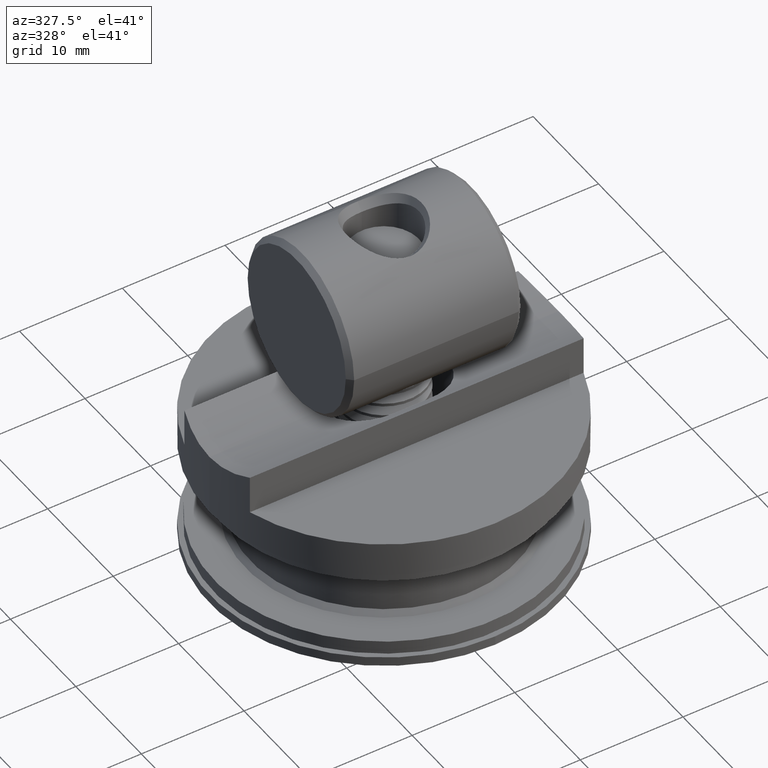
[diagram: clean part render]
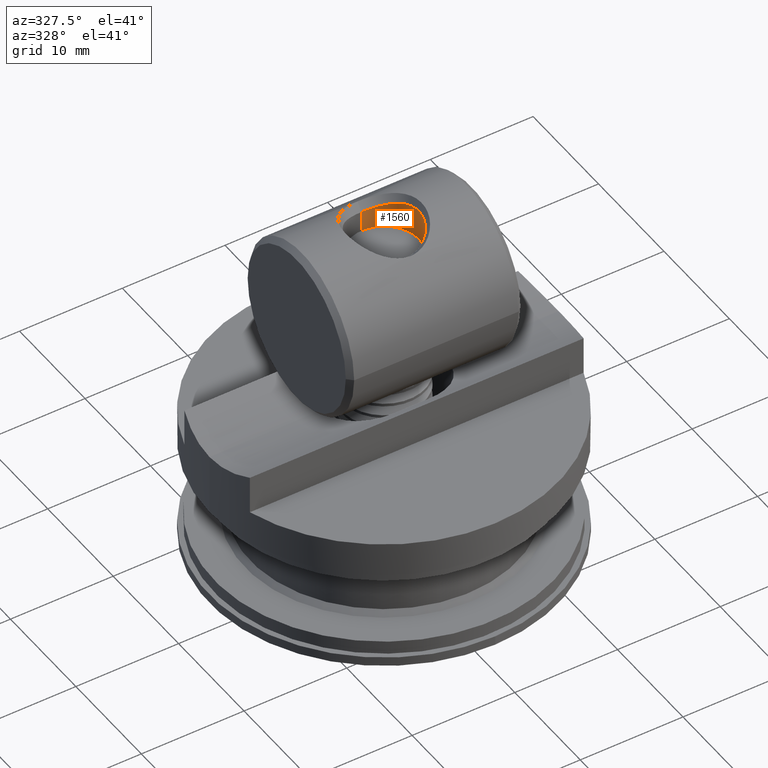
[diagram: same view with one face highlighted and labeled with its STEP entity id]
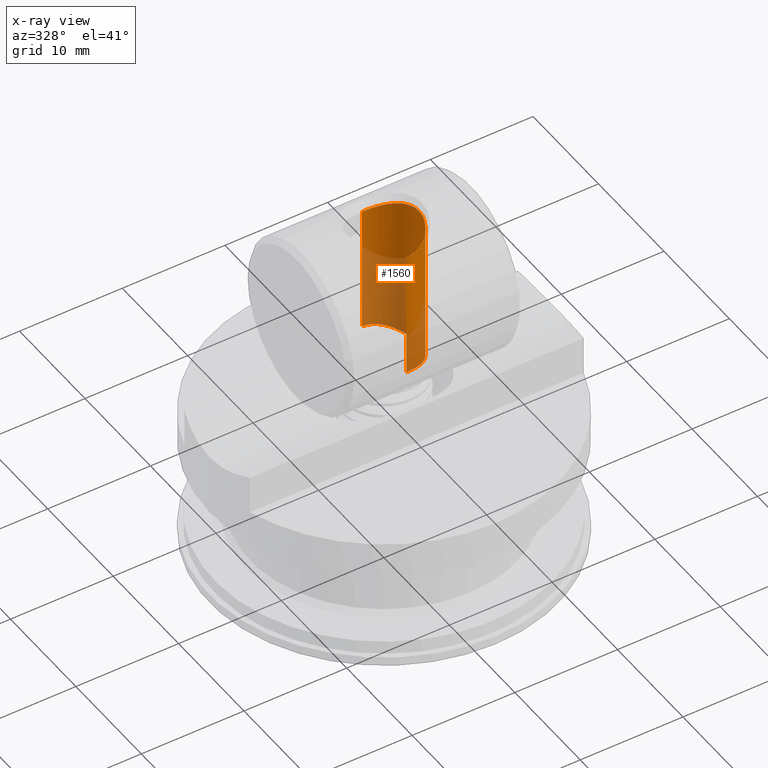
[diagram: x-ray of the same camera — body ghosted, the highlighted face saturated]
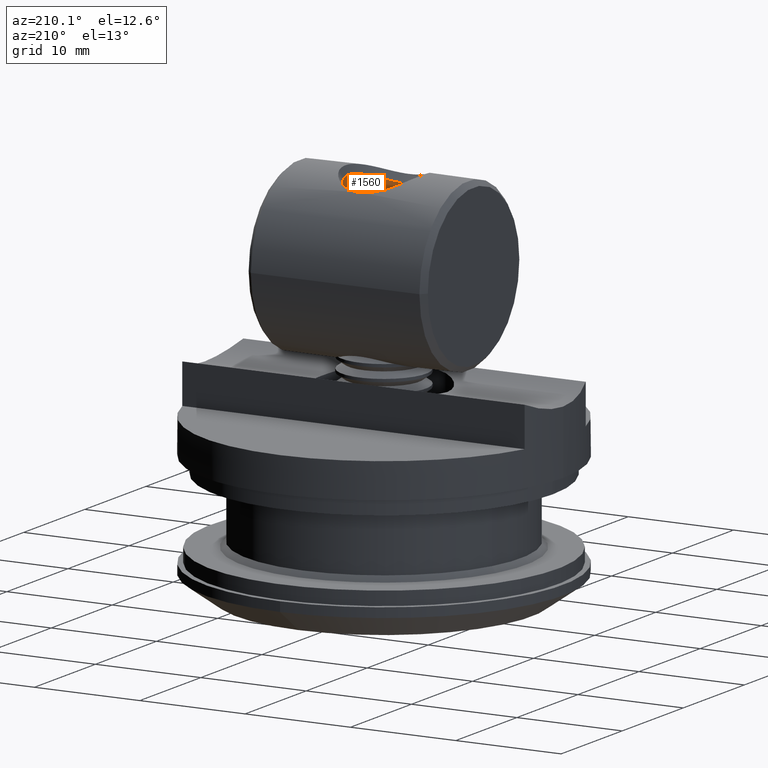
[diagram: same view with one face highlighted and labeled with its STEP entity id]
A machine part, auxiliary view. The second image highlights one B-rep face of the part: STEP entity #1560.
The next image is the same camera in x-ray: the body ghosted, the highlighted face saturated — about 48% of this face is hidden behind the body in this view.
A second angle (auxiliary view) of the same face is appended — the face is thin or edge-on in the first view.
In plain terms, the highlighted cylindrical surface (partial cylindrical patch) has radius 3.4 mm, axis along (-0, 0, 1).
Its self-contained STEP definition (entity closure, byte-faithful):
#1 = CARTESIAN_POINT ( 'NONE',  ( 2.612428075569995600, -6.848915378474107000, 2.176106729676543100 ) ) ;
#28 = CARTESIAN_POINT ( 'NONE',  ( 0.4533318368418963700, 6.260406910763247600, -3.370123141688745200 ) ) ;
#43 = CARTESIAN_POINT ( 'NONE',  ( 2.381895825218684600, 6.750253204565487900, 2.426385604337501600 ) ) ;
#77 = CARTESIAN_POINT ( 'NONE',  ( 0.4488852642628906000, -6.260041790339065500, 3.370705655158324100 ) ) ;
#127 = CARTESIAN_POINT ( 'NONE',  ( 2.402785588559569300, 6.758909017893788700, 2.405540033752748400 ) ) ;
#156 = CARTESIAN_POINT ( 'NONE',  ( 1.361148548862095100, -6.411920466086115800, 3.116092965366067600 ) ) ;
#200 = CARTESIAN_POINT ( 'NONE',  ( 2.875654679088548400, -6.970671484061420600, -1.814390951893337700 ) ) ;
#201 = CARTESIAN_POINT ( 'NONE',  ( 2.616495615567082700, 6.850724234460167300, -2.171213532455733100 ) ) ;
#229 = CARTESIAN_POINT ( 'NONE',  ( 1.870711839673838700, -6.560009036192749200, 2.839128554790818700 ) ) ;
#259 = CARTESIAN_POINT ( 'NONE',  ( 1.729998912695919900, 6.514564708654891200, -2.927882516994175800 ) ) ;
#276 = CARTESIAN_POINT ( 'NONE',  ( 2.375938906981807100, 6.747830242049051500, -2.432094576783791600 ) ) ;
#332 = CARTESIAN_POINT ( 'NONE',  ( 2.052001435885508300, 6.622834584557239200, -2.711071205793310400 ) ) ;
#354 = CARTESIAN_POINT ( 'NONE',  ( 3.309206581491113600, 7.191270957303568200, -0.7824726354752034000 ) ) ;
#738 = CARTESIAN_POINT ( 'NONE',  ( 3.018877296389804100, -7.040891763691302400, -1.564156321701261100 ) ) ;
#1129 = CARTESIAN_POINT ( 'NONE',  ( 3.036270092866329200E-013, -6.241546821160469900, -3.400000007214849100 ) ) ;
#1150 = CARTESIAN_POINT ( 'NONE',  ( 0.2262291580545270400, -6.245129562172384600, -3.394378279765619200 ) ) ;
#1276 = CARTESIAN_POINT ( 'NONE',  ( 1.024650830817564600, 6.338706542991340100, 3.242052285615730800 ) ) ;
#1348 = CARTESIAN_POINT ( 'NONE',  ( 1.774631075636051700, -6.528542459282839200, -2.901018633850528200 ) ) ;
#1428 = CARTESIAN_POINT ( 'NONE',  ( 1.339206256381618500, -6.406677303506490300, -3.125275447621457500 ) ) ;
#1429 = CARTESIAN_POINT ( 'NONE',  ( 1.361728651312928300, 6.412255139104798800, 3.115424866097950700 ) ) ;
#1457 = CARTESIAN_POINT ( 'NONE',  ( 2.804734972222282100, -6.936952621867036800, 1.921881169732873500 ) ) ;
#1502 = CARTESIAN_POINT ( 'NONE',  ( 2.047350289150647700, 6.621180697251120700, 2.714502903506705000 ) ) ;
#1530 = CARTESIAN_POINT ( 'NONE',  ( 2.345228009986186200, -6.735278852776478000, 2.461830095026840600 ) ) ;
#1560 = ADVANCED_FACE ( 'NONE', ( #17622 ), #10074, .F. ) ;
#1573 = CARTESIAN_POINT ( 'NONE',  ( 2.850464711578204900, 6.958632935363936200, 1.853391074951411300 ) ) ;
#1602 = CARTESIAN_POINT ( 'NONE',  ( 3.307940138610897300, -7.190591739028892700, 0.7878262026015286900 ) ) ;
#1626 = DIRECTION ( 'NONE',  ( 0.0000000000000000000, 0.0000000000000000000, 1.000000000000000000 ) ) ;
#1651 = CARTESIAN_POINT ( 'NONE',  ( 2.174089119738936900, 6.668090025720959900, 2.614071328303984000 ) ) ;
#1678 = CARTESIAN_POINT ( 'NONE',  ( 2.480037067771482500, -6.791333012460805600, 2.325849673836914500 ) ) ;
#1729 = CARTESIAN_POINT ( 'NONE',  ( 2.873804864583700400, 6.969782424283082800, 1.817324543989212300 ) ) ;
#1754 = CARTESIAN_POINT ( 'NONE',  ( 3.175811448002231700, -7.120842532192585700, 1.215470870833951900 ) ) ;
#1801 = CARTESIAN_POINT ( 'NONE',  ( 2.632463665908881800, -6.857848539207226100, -2.151812877940245000 ) ) ;
#1804 = CARTESIAN_POINT ( 'NONE',  ( 2.533717971523472600, 6.814378435337925300, 2.267261275747619400 ) ) ;
#1831 = CARTESIAN_POINT ( 'NONE',  ( 0.5599736595407358600, -6.270460824765400800, 3.354039966191404400 ) ) ;
#1864 = CARTESIAN_POINT ( 'NONE',  ( 0.8131754988109355400, 6.302496028894595700, -3.302159315326024000 ) ) ;
#1881 = CARTESIAN_POINT ( 'NONE',  ( 2.685442573818770800, 6.881698265834755200, 2.085625635292636600 ) ) ;
#1909 = CARTESIAN_POINT ( 'NONE',  ( 0.9438328521821152100, -6.324069430654318100, 3.266495177468463400 ) ) ;
#1952 = CARTESIAN_POINT ( 'NONE',  ( 3.092383459095611600, 7.077951716416139400, -1.413476007264408800 ) ) ;
#1978 = CARTESIAN_POINT ( 'NONE',  ( 1.435023501541832000, -6.430496035282824400, 3.083194182261868000 ) ) ;
#1986 = EDGE_LOOP ( 'NONE', ( #21710, #12031, #18794, #9803, #22279 ) ) ;
#1988 = VECTOR ( 'NONE', #9296, 1000.000000000000000 ) ;
#2013 = CARTESIAN_POINT ( 'NONE',  ( 0.7321038097214068700, 6.291107211093018000, -3.320697228786394700 ) ) ;
#2037 = CARTESIAN_POINT ( 'NONE',  ( 2.813472551887919800, 6.941073215708257700, -1.909078157442633400 ) ) ;
#2109 = CARTESIAN_POINT ( 'NONE',  ( 2.399331073331798500, 6.757477062051354900, -2.408997771656112200 ) ) ;
#2378 = EDGE_CURVE ( 'NONE', #2845, #7215, #16515, .T. ) ;
#2841 = CARTESIAN_POINT ( 'NONE',  ( 3.394606040272734900, -7.237500468526631500, -0.2221910888064349000 ) ) ;
#2845 = VERTEX_POINT ( 'NONE', #21619 ) ;
#2913 = CARTESIAN_POINT ( 'NONE',  ( 3.115652293729327400, -7.089811839120074800, -1.362217306023162600 ) ) ;
#2923 = AXIS2_PLACEMENT_3D ( 'NONE', #9730, #15172, #1626 ) ;
#3006 = CARTESIAN_POINT ( 'NONE',  ( 0.9457669082009810800, -6.324208351551467500, -3.266309337115174100 ) ) ;
#3008 = CARTESIAN_POINT ( 'NONE',  ( 1.905465129299188400, 6.571651314193410100, 2.815922485395566400 ) ) ;
#3080 = CARTESIAN_POINT ( 'NONE',  ( 1.027517437221762600, -6.339247077588704600, -3.241144990400579600 ) ) ;
#3082 = CARTESIAN_POINT ( 'NONE',  ( 1.634722860812145100, 6.486139660215168400, 2.981249205231021100 ) ) ;
#3165 = CARTESIAN_POINT ( 'NONE',  ( 0.7011318733424830600, 6.287185895024712100, 3.327043874209834100 ) ) ;
#3185 = CARTESIAN_POINT ( 'NONE',  ( 2.976828885527332600, -7.020004441330256000, 1.642760908705533500 ) ) ;
#3220 = CARTESIAN_POINT ( 'NONE',  ( 2.500361491344629700, -6.799997050897571800, -2.304077374574616100 ) ) ;
#3222 = CARTESIAN_POINT ( 'NONE',  ( 0.7805686463206001900, 6.298089066870366200, 3.309300871404968500 ) ) ;
#3249 = CARTESIAN_POINT ( 'NONE',  ( 2.944448410435929200, -7.004056807529422300, 1.700431122694670000 ) ) ;
#3298 = CARTESIAN_POINT ( 'NONE',  ( 2.687920427466429500, -6.882825369121674100, -2.082430909324586300 ) ) ;
#3300 = CARTESIAN_POINT ( 'NONE',  ( 2.965946317425503000, 7.014598156088292800, 1.663113419961460100 ) ) ;
#3330 = CARTESIAN_POINT ( 'NONE',  ( 2.503964409680541300, -6.801553310389003600, 2.300082317844000200 ) ) ;
#3379 = CARTESIAN_POINT ( 'NONE',  ( 2.351861301651641000, 6.737994345221843600, 2.455390421822193600 ) ) ;
#3405 = CARTESIAN_POINT ( 'NONE',  ( 2.588197139654671500, -6.838189843216129700, 2.204860535675081200 ) ) ;
#3446 = CARTESIAN_POINT ( 'NONE',  ( 2.298266504017174100, -6.716425264132067400, -2.505608845893612100 ) ) ;
#3449 = CARTESIAN_POINT ( 'NONE',  ( 3.377233852886284200, 7.228032546547008300, -0.3969265175433738200 ) ) ;
#3473 = CARTESIAN_POINT ( 'NONE',  ( 3.342698334840476200, -7.209298884265741900, 0.6241497473567072500 ) ) ;
#3500 = CARTESIAN_POINT ( 'NONE',  ( 1.850252845740117300, 6.553247521878232900, -2.852503754123944600 ) ) ;
#3518 = CARTESIAN_POINT ( 'NONE',  ( 3.043381543631932900, 7.053160468628125700, 1.516121913063957800 ) ) ;
#3546 = CARTESIAN_POINT ( 'NONE',  ( 1.207144055913473800, -6.376032911367785200, 3.178617107571098700 ) ) ;
#3575 = CARTESIAN_POINT ( 'NONE',  ( 2.083204580544544700, 6.634142045114924900, -2.687302349012306500 ) ) ;
#3592 = CARTESIAN_POINT ( 'NONE',  ( 2.222192460018386700, 6.686487325517687100, 2.573542315013738000 ) ) ;
#3652 = CARTESIAN_POINT ( 'NONE',  ( 2.022129801340360800, 6.612144896870287200, -2.733339589306594200 ) ) ;
#3669 = CARTESIAN_POINT ( 'NONE',  ( 3.178541795211594900, 7.122261727317397400, -1.208297052696307900 ) ) ;
#3698 = CARTESIAN_POINT ( 'NONE',  ( 0.3934776567895647000, -6.255697113984294500, 3.377610480608532300 ) ) ;
#3725 = CARTESIAN_POINT ( 'NONE',  ( 2.116268676293968600, 6.646376164978714300, -2.661130167589185200 ) ) ;
#3742 = CARTESIAN_POINT ( 'NONE',  ( 2.457098392311160200, 6.781573193134162700, -2.350306303589347700 ) ) ;
#3818 = CARTESIAN_POINT ( 'NONE',  ( 2.770350165306279400, 6.920809534225376100, -1.971381834353501900 ) ) ;
#4178 = CARTESIAN_POINT ( 'NONE',  ( 3.038484316993538900, -7.050693089225018400, -1.526115783735623200 ) ) ;
#4543 = CARTESIAN_POINT ( 'NONE',  ( 3.158133219048136400, -7.111695797433979400, -1.259758179473004200 ) ) ;
#4563 = CARTESIAN_POINT ( 'NONE',  ( 0.4529801622672480200, -6.259472444671737400, -3.371615712190669800 ) ) ;
#4614 = CARTESIAN_POINT ( 'NONE',  ( 3.377966713040284000, -7.228431398547670000, -0.3905389196254333000 ) ) ;
#4793 = CARTESIAN_POINT ( 'NONE',  ( 0.8614328665346872000, 6.309963530575305200, 3.289886953563211600 ) ) ;
#4869 = CARTESIAN_POINT ( 'NONE',  ( 1.259960358435635800, -6.387741982886543800, -3.158445816809119400 ) ) ;
#4871 = CARTESIAN_POINT ( 'NONE',  ( 1.049233229098855100, 6.343396726473107700, 3.234171549055335800 ) ) ;
#4897 = CARTESIAN_POINT ( 'NONE',  ( 2.659745771896750100, -6.870004679590077300, 2.118793905124688200 ) ) ;
#4946 = CARTESIAN_POINT ( 'NONE',  ( 1.180012219344473500, 6.369750705260750900, 3.189517445319668200 ) ) ;
#4973 = CARTESIAN_POINT ( 'NONE',  ( 2.397783562832862100, -6.756839222455776700, 2.410525898656782100 ) ) ;
#5018 = CARTESIAN_POINT ( 'NONE',  ( 2.050256966991645100, -6.622227972624653300, -2.712307739141041700 ) ) ;
#5022 = CARTESIAN_POINT ( 'NONE',  ( 3.257105295724271400, 7.163515402224192900, 0.9757103832413363000 ) ) ;
#5048 = CARTESIAN_POINT ( 'NONE',  ( 2.019271672408743600, -6.611127933083857900, 2.735451663589714600 ) ) ;
#5090 = CARTESIAN_POINT ( 'NONE',  ( 2.164612968366427900, -6.664495754693874100, -2.621928015880177200 ) ) ;
#5092 = CARTESIAN_POINT ( 'NONE',  ( 2.790472351146380300, 6.930198000414701000, 1.943143114999007900 ) ) ;
#5118 = CARTESIAN_POINT ( 'NONE',  ( 2.118803250554959200, -6.647309606370022500, 2.659141738383137300 ) ) ;
#5162 = CARTESIAN_POINT ( 'NONE',  ( 2.605559690357758000, 6.845854229885346400, 2.184423319201089300 ) ) ;
#5186 = CARTESIAN_POINT ( 'NONE',  ( 2.396280942462618600, -6.756217908147080600, 2.412019644836462800 ) ) ;
#5221 = CARTESIAN_POINT ( 'NONE',  ( 1.054763462182059600, 6.344291032736548700, -3.232700621845392400 ) ) ;
#5237 = CARTESIAN_POINT ( 'NONE',  ( 2.135752418050717700, -6.653601037039851300, -2.645648272395292100 ) ) ;
#5238 = CARTESIAN_POINT ( 'NONE',  ( 2.658539623978035700, 6.869553961734657000, 2.119523346156837900 ) ) ;
#5266 = CARTESIAN_POINT ( 'NONE',  ( 1.522908000739455100, -6.454273335924841400, 3.040091754365061000 ) ) ;
#5299 = CARTESIAN_POINT ( 'NONE',  ( -5.877795466790198800E-020, 8.000000000000000000, 3.400000000000020300 ) ) ;
#5302 = CARTESIAN_POINT ( 'NONE',  ( 2.205621879973582700, 6.680087815835274300, -2.587780368219188900 ) ) ;
#5316 = CARTESIAN_POINT ( 'NONE',  ( 2.825709872740770600, 6.946863001819329100, 1.890905215588024800 ) ) ;
#5363 = CARTESIAN_POINT ( 'NONE',  ( 0.6246532947938420200, 6.277589895369645000, -3.342576002842933200 ) ) ;
#5380 = CARTESIAN_POINT ( 'NONE',  ( 2.508570407906880500, 6.803530437587686400, -2.295057382506669800 ) ) ;
#5459 = CARTESIAN_POINT ( 'NONE',  ( 2.792519314162201600, 6.931207601302950200, -1.939587376107079400 ) ) ;
#5539 = CARTESIAN_POINT ( 'NONE',  ( 3.281757282329748300, 7.176601006228803000, -0.8906069638888308700 ) ) ;
#5606 = CARTESIAN_POINT ( 'NONE',  ( 2.927145714223225300, -6.995522928796717100, -1.731238792456509100 ) ) ;
#5879 = EDGE_CURVE ( 'NONE', #14041, #19233, #13208, .T. ) ;
#6268 = CARTESIAN_POINT ( 'NONE',  ( 3.371000876160453500, -7.224638020152262600, -0.4467504377553662700 ) ) ;
#6376 = CARTESIAN_POINT ( 'NONE',  ( 0.7268159020779423300, 6.290588931484253800, 3.321520482186897500 ) ) ;
#6513 = CARTESIAN_POINT ( 'NONE',  ( 1.939704200202420100, -6.583313503609336000, -2.792440180147213600 ) ) ;
#6514 = CARTESIAN_POINT ( 'NONE',  ( 0.4510958266890725000, 6.260227383725595700, 3.370409045920100200 ) ) ;
#6541 = CARTESIAN_POINT ( 'NONE',  ( 2.385212450625723100, -6.751646238895039800, 2.422985273363552000 ) ) ;
#6600 = CARTESIAN_POINT ( 'NONE',  ( 1.101400649677843000, 6.353692750631947400, 3.216779847402278400 ) ) ;
#6627 = CARTESIAN_POINT ( 'NONE',  ( 2.153717408185766400, -6.660383325287297000, 2.630880205015714100 ) ) ;
#6667 = CARTESIAN_POINT ( 'NONE',  ( 2.313299702519251000, -6.722433202406181300, -2.491736161480984500 ) ) ;
#6668 = CARTESIAN_POINT ( 'NONE',  ( 0.2270380598145501900, 6.245155261138870100, 3.394335068421727700 ) ) ;
#6692 = CARTESIAN_POINT ( 'NONE',  ( 3.111642706716376800, -7.087779475500513900, 1.370553225581815600 ) ) ;
#6736 = CARTESIAN_POINT ( 'NONE',  ( 2.412953117111696200, -6.763126941386951300, -2.395343828718217200 ) ) ;
#6738 = CARTESIAN_POINT ( 'NONE',  ( 2.472288643171686000, 6.787999111670862900, 2.334336000759480400 ) ) ;
#6765 = CARTESIAN_POINT ( 'NONE',  ( 2.135742113211830600, -6.653635794398668100, 2.645497942604984100 ) ) ;
#6820 = CARTESIAN_POINT ( 'NONE',  ( 2.473983850842918800, -6.788717920727509500, -2.332544356654161700 ) ) ;
#6822 = CARTESIAN_POINT ( 'NONE',  ( 3.399974701128431600, 7.240442585526989400, 0.1133245406121842800 ) ) ;
#6849 = CARTESIAN_POINT ( 'NONE',  ( 3.121646175615169200, -7.092903079872090000, 1.347645579373975700 ) ) ;
#6886 = CARTESIAN_POINT ( 'NONE',  ( 1.527253169366043800, 6.455468089138146400, -3.037914127404566700 ) ) ;
#6901 = CARTESIAN_POINT ( 'NONE',  ( 2.352036113213964400, -6.738065810308206900, -2.455223138851701000 ) ) ;
#6905 = CARTESIAN_POINT ( 'NONE',  ( 2.437919697244358600, 6.773536009041403200, 2.370004939264314500 ) ) ;
#6930 = CARTESIAN_POINT ( 'NONE',  ( 1.809677930637868500, -6.539966109344155700, 2.878630846563401800 ) ) ;
#6975 = CARTESIAN_POINT ( 'NONE',  ( 2.287684324783780800, 6.712216981384368200, 2.515267543752854400 ) ) ;
#6999 = CARTESIAN_POINT ( 'NONE',  ( 0.8068479257405618600, -6.301540458996148800, 3.303720879114838000 ) ) ;
#7048 = CARTESIAN_POINT ( 'NONE',  ( 3.017788090113361100, 7.040339370059445700, 1.566445632175641700 ) ) ;
#7075 = CARTESIAN_POINT ( 'NONE',  ( 0.05714247005593933700, -6.241546640894099200, 3.400000000000020800 ) ) ;
#7105 = CARTESIAN_POINT ( 'NONE',  ( 1.952876070452223700, 6.587788451639530900, -2.783451479723946200 ) ) ;
#7125 = CARTESIAN_POINT ( 'NONE',  ( 2.484134964941685300, 6.793077704219676600, -2.321472628191765700 ) ) ;
#7156 = CARTESIAN_POINT ( 'NONE',  ( 1.586283561315111800, -6.472109471030566200, 3.007309355313534400 ) ) ;
#7191 = CARTESIAN_POINT ( 'NONE',  ( 1.263576761796024300, 6.388756379238352600, -3.156607345128438000 ) ) ;
#7207 = CARTESIAN_POINT ( 'NONE',  ( 2.853632730517651900, 6.960080447074366500, -1.849350054082990600 ) ) ;
#7215 = VERTEX_POINT ( 'NONE', #18013 ) ;
#7277 = CARTESIAN_POINT ( 'NONE',  ( 3.216457046691993100, 7.142065360299207000, -1.103410068037700100 ) ) ;
#7576 = CARTESIAN_POINT ( 'NONE',  ( 3.005592525371209200, -7.034268115715463000, -1.589534114389667100 ) ) ;
#7662 = B_SPLINE_CURVE_WITH_KNOTS ( 'NONE', 3,
 ( #9460, #11200, #6668, #16920, #6514, #14980, #16699, #3165, #6376, #3222, #4793, #15267, #1276, #4871, #6600, #4946, #21974, #8339, #11722, #1429, #11645, #16994, #18428, #22121, #3082, #8117, #21893, #11789, #13301, #3008, #16851, #13454, #18720, #15045, #18575, #1502, #8403, #21832, #10357, #15633, #13686, #1651, #17287, #3592, #20459, #6975, #10125, #19019, #12078, #3379, #43, #19087, #127, #15404, #8696, #11936, #6905, #6738, #13908, #13831, #1804, #17073, #22202, #5162, #13615, #15559, #5238, #1881, #11864, #5092, #5316, #8482, #1573, #1729, #17367, #3300, #17153, #7048, #3518, #15338, #20751, #10439, #17218, #12153, #20612, #13756, #5022, #18788, #18863, #20534, #10206, #22280, #8550, #10283, #6822, #22353, #12008, #3449, #15489, #18937, #8627, #20682, #354, #5539, #20827, #8850, #7277, #3669, #8774, #15786, #21060, #1952, #20912, #9000, #12382, #10512, #17581, #13983, #7207, #2037, #10659, #5459, #3818, #19320, #14059, #201, #12229, #15710, #19245, #8923, #5380, #17512, #7125, #3742, #17439, #2109, #19160, #10582, #14135, #276, #12305, #20986, #15862, #15542, #12136, #5302, #19225, #8756, #13888, #3725, #3575, #332, #3652, #17348, #12359, #7105, #13815, #17424, #12287, #3500, #15691, #259, #20736, #10642, #20892, #10492, #6886, #18919, #19145, #8609, #7191, #20812, #8902, #5221, #8833, #10569, #20969, #1864, #2013, #5363, #12211, #28, #13740, #20665, #14040, #15614 ),
 .UNSPECIFIED., .F., .F.,
 ( 4, 2, 2, 2, 2, 1, 2, 2, 1, 2, 2, 1, 1, 2, 2, 1, 1, 2, 2, 1, 2, 2, 1, 2, 2, 1, 1, 2, 2, 1, 2, 2, 2, 1, 1, 1, 2, 2, 1, 2, 2, 1, 1, 2, 2, 1, 1, 2, 2, 1, 2, 2, 1, 2, 2, 1, 2, 2, 2, 2, 2, 2, 2, 2, 2, 2, 2, 1, 2, 2, 1, 2, 2, 1, 1, 2, 2, 1, 2, 2, 1, 2, 2, 1, 2, 2, 2, 1, 2, 2, 1, 2, 2, 1, 2, 2, 1, 1, 2, 2, 1, 1, 2, 2, 1, 2, 2, 1, 2, 2, 2, 4 ),
 ( 0.0000000000000000000, 0.01561387411188830700, 0.02342081116783245900, 0.03122774822377661500, 0.03513121675174869100, 0.03903468527972076700, 0.04684162233566491900, 0.05074509086363699500, 0.05464855939160907100, 0.06245549644755322300, 0.06440723071153928200, 0.06635896497552533400, 0.07026243350349743700, 0.07806937055944165900, 0.08002110482342766900, 0.08197283908741367900, 0.08587630761538575500, 0.09368324467132994900, 0.09563497893531600100, 0.09758671319930203900, 0.1014901817272740500, 0.1034419159912600700, 0.1053936502552460900, 0.1092971187832181100, 0.1102729859152111200, 0.1112488530472041200, 0.1132005873111901600, 0.1171040558391622800, 0.1180799229711553100, 0.1190557901031483500, 0.1210075243671343300, 0.1249109928951063100, 0.1253989264611029000, 0.1258868600270994500, 0.1268627271590925800, 0.1288144614230787600, 0.1327179299510511900, 0.1346696642150374800, 0.1366213984790237100, 0.1405248670069962100, 0.1424766012709824400, 0.1444283355349686200, 0.1483318040629410500, 0.1561387411188860100, 0.1580904753828722700, 0.1600422096468584700, 0.1639456781748308600, 0.1717526152307756500, 0.1756560837587480600, 0.1795595522867204600, 0.1873664893426653700, 0.1912699578706378600, 0.1951734263986103200, 0.2029803634545552200, 0.2068838319825276900, 0.2107873005105001500, 0.2185942375664451100, 0.2342081116783350000, 0.2498219857902249100, 0.2654358599021148200, 0.2732427969580597500, 0.2810497340140046800, 0.2888566710699496100, 0.2966636081258945400, 0.3044705451818395200, 0.3122774822377845100, 0.3161809507657570300, 0.3200844192937294900, 0.3278913563496744800, 0.3317948248776470500, 0.3356982934056195200, 0.3435052304615644500, 0.3454569647255507100, 0.3474086989895369700, 0.3513121675175094300, 0.3591191045734544700, 0.3610708388374407900, 0.3630225731014271000, 0.3669260416293997400, 0.3688777758933860500, 0.3708295101573723700, 0.3747329786853450500, 0.3757088458173382700, 0.3766847129493314200, 0.3786364472133175700, 0.3825399157412899300, 0.3844916500052759600, 0.3864433842692620600, 0.3903468527972343600, 0.3922985870612203900, 0.3942503213252064900, 0.3981537898531787900, 0.4001055241171648200, 0.4020572583811509200, 0.4059607269091232700, 0.4079124611731093600, 0.4098641954370955100, 0.4137676639650678100, 0.4215746010210123500, 0.4235263352849984500, 0.4254780695489845900, 0.4293815380769568900, 0.4371884751329014300, 0.4410919436608736200, 0.4449954121888459200, 0.4528023492447904600, 0.4567058177727626500, 0.4606092863007349400, 0.4684162233566794800, 0.4762231604126240200, 0.4840300974685685700, 0.4996439715804577000 ),
 .UNSPECIFIED. ) ;
#7865 = CARTESIAN_POINT ( 'NONE',  ( 3.208165013769146900, -7.137700270366848600, -1.128338457128268600 ) ) ;
#8041 = CARTESIAN_POINT ( 'NONE',  ( 1.411323905089485000, -6.424699071807890700, -3.093363477250203000 ) ) ;
#8115 = CARTESIAN_POINT ( 'NONE',  ( 0.7041605496577899600, -6.287578520884860500, -3.326407071951913900 ) ) ;
#8117 = CARTESIAN_POINT ( 'NONE',  ( 1.657246754016865400, 6.492796748885250900, 2.968787437937078400 ) ) ;
#8265 = CARTESIAN_POINT ( 'NONE',  ( 0.5633208515260123000, -6.269929804225350600, -3.354979437589874700 ) ) ;
#8293 = CARTESIAN_POINT ( 'NONE',  ( 3.320103860802788600, -7.197125976745794200, 0.7349186474387183800 ) ) ;
#8339 = CARTESIAN_POINT ( 'NONE',  ( 1.326283701925073700, 6.403590037212444100, 3.130683738483525300 ) ) ;
#8360 = CARTESIAN_POINT ( 'NONE',  ( 2.241075138582650600, -6.693860886178322600, 2.556949241297985100 ) ) ;
#8403 = CARTESIAN_POINT ( 'NONE',  ( 2.068061493669447700, 6.628675577544699500, 2.698757284016712900 ) ) ;
#8432 = CARTESIAN_POINT ( 'NONE',  ( 2.982611907815728700, -7.022863494067082400, 1.632246780613525200 ) ) ;
#8482 = CARTESIAN_POINT ( 'NONE',  ( 2.834656187858392700, 6.951106643546426200, 1.877480185061425300 ) ) ;
#8510 = CARTESIAN_POINT ( 'NONE',  ( 3.214185691678674800, -7.140873489470880700, 1.110026184608253500 ) ) ;
#8550 = CARTESIAN_POINT ( 'NONE',  ( 3.371954341878542000, 7.225153375980622400, 0.4499237044919386400 ) ) ;
#8573 = CARTESIAN_POINT ( 'NONE',  ( 1.949407481931501000, -6.586591502829604900, 2.785883036885783400 ) ) ;
#8609 = CARTESIAN_POINT ( 'NONE',  ( 1.291526069221069100, 6.395271697848661700, -3.145259678927317300 ) ) ;
#8625 = CARTESIAN_POINT ( 'NONE',  ( 2.439340548693646100, -6.774131773646546500, -2.368543844906035600 ) ) ;
#8627 = CARTESIAN_POINT ( 'NONE',  ( 3.343708581243625600, 7.209844532976098300, -0.6187450541316966700 ) ) ;
#8693 = CARTESIAN_POINT ( 'NONE',  ( 2.006852023353131300, -6.606685831482207200, -2.744700570585041800 ) ) ;
#8696 = CARTESIAN_POINT ( 'NONE',  ( 2.411737202795845500, 6.762621641058035300, 2.396568009879596900 ) ) ;
#8725 = CARTESIAN_POINT ( 'NONE',  ( 0.1126229642176275600, -6.242436069565974000, 3.398603593422877100 ) ) ;
#8756 = CARTESIAN_POINT ( 'NONE',  ( 2.151936715542011500, 6.659708565279051300, -2.632353863814276700 ) ) ;
#8774 = CARTESIAN_POINT ( 'NONE',  ( 3.158076328992167200, 7.111641766758070900, -1.260875800055669200 ) ) ;
#8802 = CARTESIAN_POINT ( 'NONE',  ( 0.8889779064086658100, -6.314803924681180000, 3.281848485107167400 ) ) ;
#8833 = CARTESIAN_POINT ( 'NONE',  ( 0.9778607626863223800, 6.330097891126032800, -3.256456378750848500 ) ) ;
#8850 = CARTESIAN_POINT ( 'NONE',  ( 3.233335263365023000, 7.150946543740386300, -1.052971128293609600 ) ) ;
#8902 = CARTESIAN_POINT ( 'NONE',  ( 1.132430542336039200, 6.359687259596839200, -3.206714669875804900 ) ) ;
#8923 = CARTESIAN_POINT ( 'NONE',  ( 2.538046282857098700, 6.816233218136522600, -2.262559742365416200 ) ) ;
#9000 = CARTESIAN_POINT ( 'NONE',  ( 3.019205027406513900, 7.041009797850673400, -1.564518338969773900 ) ) ;
#9296 = DIRECTION ( 'NONE',  ( -7.347244333388846000E-021, 1.000000000000000000, -3.597956313211332900E-021 ) ) ;
#9460 = CARTESIAN_POINT ( 'NONE',  ( -8.699620319192825100E-019, 6.241546796092666000, 3.400000000000022600 ) ) ;
#9497 = EDGE_CURVE ( 'NONE', #19233, #10967, #7662, .T. ) ;
#9730 = CARTESIAN_POINT ( 'NONE',  ( -5.877795466790198800E-020, 8.000000000000000000, -2.878365050653575500E-020 ) ) ;
#9803 = ORIENTED_EDGE ( 'NONE', *, *, #5879, .T. ) ;
#9824 = CARTESIAN_POINT ( 'NONE',  ( 0.7834355572400488700, -6.298503679729169100, -3.308623349207321200 ) ) ;
#9897 = CARTESIAN_POINT ( 'NONE',  ( 1.636376806650978700, -6.486625519832708500, -2.980341972720035300 ) ) ;
#9921 = CARTESIAN_POINT ( 'NONE',  ( 3.399719254605296100, -7.240304611497858600, 0.1210555363064694800 ) ) ;
#9996 = CARTESIAN_POINT ( 'NONE',  ( 2.373785896272806500, -6.746946622984662400, 2.434197193646668600 ) ) ;
#10045 = CARTESIAN_POINT ( 'NONE',  ( 2.223814744995786800, -6.687116832825823000, -2.572135588699572000 ) ) ;
#10074 = CYLINDRICAL_SURFACE ( 'NONE', #2923, 3.400000000000020300 ) ;
#10079 = CARTESIAN_POINT ( 'NONE',  ( 2.049132420474293800, -6.621800136789318900, 2.713240108555329000 ) ) ;
#10125 = CARTESIAN_POINT ( 'NONE',  ( 2.297504015344122400, 6.716121125690297500, 2.506308644759755100 ) ) ;
#10151 = CARTESIAN_POINT ( 'NONE',  ( 2.275002484651474300, -6.707190684989538600, 2.526757259123916900 ) ) ;
#10204 = CARTESIAN_POINT ( 'NONE',  ( 2.167667632399177700, -6.665653571410030200, -2.619398506395879300 ) ) ;
#10206 = CARTESIAN_POINT ( 'NONE',  ( 3.321680382053831000, 7.197974590168519700, 0.7276991898835739600 ) ) ;
#10231 = CARTESIAN_POINT ( 'NONE',  ( 2.006391188207252700, -6.606555357982845300, 2.744921647597798200 ) ) ;
#10282 = CARTESIAN_POINT ( 'NONE',  ( 2.836832918434118800, -6.952141133585662700, -1.874188826715218200 ) ) ;
#10283 = CARTESIAN_POINT ( 'NONE',  ( 3.394232403268407200, 7.237297790640172800, 0.2273627414069188900 ) ) ;
#10307 = CARTESIAN_POINT ( 'NONE',  ( 2.422636411961399400, -6.767123922494326000, 2.385746610251932700 ) ) ;
#10357 = CARTESIAN_POINT ( 'NONE',  ( 2.133393735404970600, 6.652719060362330500, 2.647551716950959500 ) ) ;
#10388 = CARTESIAN_POINT ( 'NONE',  ( 1.259972966762368500, -6.387926520185091700, 3.158048703123327500 ) ) ;
#10436 = CARTESIAN_POINT ( 'NONE',  ( 2.967115364590426500, -7.015173845565317200, -1.661018424305478000 ) ) ;
#10439 = CARTESIAN_POINT ( 'NONE',  ( 3.145193727732195300, 7.105012681791290400, 1.291695565341396000 ) ) ;
#10465 = CARTESIAN_POINT ( 'NONE',  ( 1.600094209404697300, -6.476071429216315100, 2.999976909650489800 ) ) ;
#10490 = DIRECTION ( 'NONE',  ( -7.347244333388846000E-021, 1.000000000000000000, -3.597956313211332900E-021 ) ) ;
#10492 = CARTESIAN_POINT ( 'NONE',  ( 1.565450673346277600, 6.466198078254473500, -3.018206739058571800 ) ) ;
#10512 = CARTESIAN_POINT ( 'NONE',  ( 2.966429422979485000, 7.014864360678497900, -1.661629090784348300 ) ) ;
#10538 = CARTESIAN_POINT ( 'NONE',  ( 1.656295043070453900, -6.492354774629346200, 2.969729571661849000 ) ) ;
#10569 = CARTESIAN_POINT ( 'NONE',  ( 0.9492846134612471500, 6.325021413089529300, -3.264913516333224100 ) ) ;
#10582 = CARTESIAN_POINT ( 'NONE',  ( 2.394592190407988300, 6.755519271262233600, -2.413697633454069600 ) ) ;
#10642 = CARTESIAN_POINT ( 'NONE',  ( 1.604648396827921000, 6.477384065274105900, -2.997543325730080100 ) ) ;
#10659 = CARTESIAN_POINT ( 'NONE',  ( 2.807020499459413500, 6.938029690345617300, -1.918540910467508600 ) ) ;
#10967 = VERTEX_POINT ( 'NONE', #15394 ) ;
#11200 = CARTESIAN_POINT ( 'NONE',  ( 0.1132683202073080700, 6.241546796092666000, 3.400000000000021200 ) ) ;
#11321 = CARTESIAN_POINT ( 'NONE',  ( 3.354178089234578500, -7.215510553223275300, -0.5592157065103127200 ) ) ;
#11500 = CARTESIAN_POINT ( 'NONE',  ( 1.693197639191877500, -6.503532095883530300, -2.948608973337632800 ) ) ;
#11645 = CARTESIAN_POINT ( 'NONE',  ( 1.398508662713750200, 6.421395227287037600, 3.099264471450685000 ) ) ;
#11721 = CARTESIAN_POINT ( 'NONE',  ( 1.486035261766640400, -6.443977907700886300, -3.058930770237994400 ) ) ;
#11722 = CARTESIAN_POINT ( 'NONE',  ( 1.337305016816773700, 6.406262830373752800, 3.125986613551735800 ) ) ;
#11744 = CARTESIAN_POINT ( 'NONE',  ( 2.318603791419279000, -6.724475621454450500, 2.487226022239798200 ) ) ;
#11788 = CARTESIAN_POINT ( 'NONE',  ( 2.288836765678123000, -6.712674690065991700, -2.514218732380405700 ) ) ;
#11789 = CARTESIAN_POINT ( 'NONE',  ( 1.772297690998359900, 6.527806472747713000, 2.902434750135937300 ) ) ;
#11817 = CARTESIAN_POINT ( 'NONE',  ( 3.054785310790239200, -7.058847796539051700, 1.494521158099220800 ) ) ;
#11861 = CARTESIAN_POINT ( 'NONE',  ( 2.382132871370322900, -6.750350728521796700, -2.426153569087981900 ) ) ;
#11864 = CARTESIAN_POINT ( 'NONE',  ( 2.744911863892352000, 6.908879812109252500, 2.007682504465207400 ) ) ;
#11889 = CARTESIAN_POINT ( 'NONE',  ( 2.080302668482806500, -6.633081624295339700, 2.689548143408448100 ) ) ;
#11932 = CARTESIAN_POINT ( 'NONE',  ( 2.642853175513900900, -6.862500556051568200, -2.139050955658537300 ) ) ;
#11936 = CARTESIAN_POINT ( 'NONE',  ( 2.419743046600042000, 6.765949234880039900, 2.388502244628052800 ) ) ;
#11959 = CARTESIAN_POINT ( 'NONE',  ( 2.258501229848965500, -6.700694181257453000, 2.541502563634271600 ) ) ;
#12005 = CARTESIAN_POINT ( 'NONE',  ( 2.852507985515361000, -6.959608284495162800, -1.850244026572362500 ) ) ;
#12008 = CARTESIAN_POINT ( 'NONE',  ( 3.394366801132467700, 7.237368771072717700, -0.2265185401028330700 ) ) ;
#12030 = CARTESIAN_POINT ( 'NONE',  ( 2.270350835377854100, -6.705357171447116300, 2.530922790305531600 ) ) ;
#12031 = ORIENTED_EDGE ( 'NONE', *, *, #2378, .T. ) ;
#12077 = CARTESIAN_POINT ( 'NONE',  ( 2.176303621951671800, -6.668931554034489100, -2.612227793462901000 ) ) ;
#12078 = CARTESIAN_POINT ( 'NONE',  ( 2.334296965869469000, 6.730859811233654200, 2.472179152421078100 ) ) ;
#12111 = CARTESIAN_POINT ( 'NONE',  ( 0.9727590484677588500, -6.329181217393113500, 3.257985084931369600 ) ) ;
#12136 = CARTESIAN_POINT ( 'NONE',  ( 2.238674866270449600, 6.692933026837165400, -2.559017472666135900 ) ) ;
#12153 = CARTESIAN_POINT ( 'NONE',  ( 3.176992753810604900, 7.121473718576149600, 1.211409894680229400 ) ) ;
#12179 = CARTESIAN_POINT ( 'NONE',  ( 1.050079757358978400, -6.343383696599143000, 3.234229494520933100 ) ) ;
#12211 = CARTESIAN_POINT ( 'NONE',  ( 0.5658833773311290300, 6.271069736373620500, -3.353060653746182200 ) ) ;
#12229 = CARTESIAN_POINT ( 'NONE',  ( 2.609065616729523200, 6.847423028648620400, -2.180125950325511900 ) ) ;
#12257 = CARTESIAN_POINT ( 'NONE',  ( 1.560893524249280100, -6.464914851181252900, 3.020565592966245400 ) ) ;
#12287 = CARTESIAN_POINT ( 'NONE',  ( 1.874687873103533500, 6.561331287830747700, -2.836504651661820600 ) ) ;
#12305 = CARTESIAN_POINT ( 'NONE',  ( 2.347877740892257300, 6.736355572077301600, -2.459298476059057500 ) ) ;
#12359 = CARTESIAN_POINT ( 'NONE',  ( 1.986809849536792500, 6.599657424893708300, -2.759127750086879200 ) ) ;
#12382 = CARTESIAN_POINT ( 'NONE',  ( 2.978167056712914800, 7.020656495817667600, -1.640533492475058100 ) ) ;
#12893 = CARTESIAN_POINT ( 'NONE',  ( 3.343918254385327000, -7.209959310045204200, -0.6174669028732372400 ) ) ;
#13104 = CARTESIAN_POINT ( 'NONE',  ( 3.399990207746451900, -7.240452111957382400, 0.008160099779160401600 ) ) ;
#13208 = LINE ( 'NONE', #5299, #20753 ) ;
#13299 = CARTESIAN_POINT ( 'NONE',  ( 0.8642910143703269600, -6.310418991300563700, -3.289137467689061000 ) ) ;
#13301 = CARTESIAN_POINT ( 'NONE',  ( 1.844313669590886600, 6.551115055878074900, 2.856917207736738600 ) ) ;
#13377 = CARTESIAN_POINT ( 'NONE',  ( 1.908540275709627300, -6.572690656213728400, -2.813839654173985000 ) ) ;
#13454 = CARTESIAN_POINT ( 'NONE',  ( 1.936593975039449400, 6.582246848542588700, 2.794598109867424200 ) ) ;
#13481 = CARTESIAN_POINT ( 'NONE',  ( 2.202907130663612100, -6.679044862431251100, 2.590086280485690600 ) ) ;
#13526 = CARTESIAN_POINT ( 'NONE',  ( 2.582409620149767700, -6.835604024722715400, -2.211899267033615900 ) ) ;
#13562 = CARTESIAN_POINT ( 'NONE',  ( 3.369486640573408300, -7.223814852637360700, 0.4579302086916958700 ) ) ;
#13612 = CARTESIAN_POINT ( 'NONE',  ( 2.041648782782907700, -6.619126281143667100, -2.718801080294912100 ) ) ;
#13615 = CARTESIAN_POINT ( 'NONE',  ( 2.629844252020877300, 6.856677672751739100, 2.155012956918017000 ) ) ;
#13641 = CARTESIAN_POINT ( 'NONE',  ( 2.790111338993405400, -6.930077517375522700, 1.943050233782171300 ) ) ;
#13669 = CARTESIAN_POINT ( 'NONE',  ( 0.1123786809015270000, -6.241545495579596400, -3.400000000000010600 ) ) ;
#13685 = CARTESIAN_POINT ( 'NONE',  ( 2.747276807501663600, -6.909975480579333000, -2.004444480201010400 ) ) ;
#13686 = CARTESIAN_POINT ( 'NONE',  ( 2.165322919877464600, 6.664765667761194800, 2.621337266107036000 ) ) ;
#13712 = CARTESIAN_POINT ( 'NONE',  ( 2.453036165225020800, -6.779859734437343900, 2.354544149592405800 ) ) ;
#13740 = CARTESIAN_POINT ( 'NONE',  ( 0.3971810731880042200, 6.255962197962815300, -3.377189568513095700 ) ) ;
#13756 = CARTESIAN_POINT ( 'NONE',  ( 3.232967604323113700, 7.150753016054758300, 1.053993883756936500 ) ) ;
#13782 = CARTESIAN_POINT ( 'NONE',  ( 3.016577978717910100, -7.039698643707895400, 1.569557525479912600 ) ) ;
#13815 = CARTESIAN_POINT ( 'NONE',  ( 1.919990585552215500, 6.576550254681270000, -2.806118817864642800 ) ) ;
#13831 = CARTESIAN_POINT ( 'NONE',  ( 2.522534953810060100, 6.809545250152133600, 2.279684120757435700 ) ) ;
#13858 = CARTESIAN_POINT ( 'NONE',  ( 1.725723042109078800, -6.513241504863088900, 2.930407072859558600 ) ) ;
#13888 = CARTESIAN_POINT ( 'NONE',  ( 2.138707713903947200, 6.654738169178155100, -2.643129999376502100 ) ) ;
#13908 = CARTESIAN_POINT ( 'NONE',  ( 2.498448558002705600, 6.799178149879083800, 2.306149157691737500 ) ) ;
#13939 = CARTESIAN_POINT ( 'NONE',  ( 0.7252806283789506900, -6.290181373135156100, 3.322199125908628300 ) ) ;
#13983 = CARTESIAN_POINT ( 'NONE',  ( 2.898857029518104400, 6.981791083483257100, -1.778159839599782900 ) ) ;
#13985 = CARTESIAN_POINT ( 'NONE',  ( 4.163211337554346800E-016, 8.000000000000000000, -3.400000000000020300 ) ) ;
#14007 = CARTESIAN_POINT ( 'NONE',  ( 0.2830826680628845100, -6.248737442991568100, 3.388648908953480800 ) ) ;
#14040 = CARTESIAN_POINT ( 'NONE',  ( 0.1135485635532889100, 6.241548446880710100, -3.400000000000041700 ) ) ;
#14041 = VERTEX_POINT ( 'NONE', #19031 ) ;
#14059 = CARTESIAN_POINT ( 'NONE',  ( 2.663339049406215700, 6.871627905716733800, -2.114262345291291600 ) ) ;
#14135 = CARTESIAN_POINT ( 'NONE',  ( 2.387250947556273300, 6.752485965389622500, -2.420977239563248100 ) ) ;
#14507 = CARTESIAN_POINT ( 'NONE',  ( 2.998281208668963000, -7.030632764219175700, -1.603272288410372500 ) ) ;
#14733 = CARTESIAN_POINT ( 'NONE',  ( 3.178605289812764600, -7.122312039839921600, -1.207172113486220300 ) ) ;
#14955 = CARTESIAN_POINT ( 'NONE',  ( 3.266383173808235200, -7.168423521803790200, -0.9453684358366286600 ) ) ;
#14980 = CARTESIAN_POINT ( 'NONE',  ( 0.5619972883042589900, 6.270673371691395400, 3.353699990997256500 ) ) ;
#15045 = CARTESIAN_POINT ( 'NONE',  ( 2.003863223775833400, 6.605629299997930000, 2.746883809025524300 ) ) ;
#15172 = DIRECTION ( 'NONE',  ( -7.347244333388846000E-021, 1.000000000000000000, -3.597956313211332100E-021 ) ) ;
#15194 = CARTESIAN_POINT ( 'NONE',  ( 1.103375311923240300, -6.354093133019715000, -3.216100716273127000 ) ) ;
#15217 = CARTESIAN_POINT ( 'NONE',  ( 2.896487189860698800, -6.980645009300437700, 1.782013166968138500 ) ) ;
#15264 = CARTESIAN_POINT ( 'NONE',  ( 2.524655585629960600, -6.810460659991885100, -2.277335989221616500 ) ) ;
#15267 = CARTESIAN_POINT ( 'NONE',  ( 0.9429075757141974800, 6.323710776157551700, 3.267135548872373500 ) ) ;
#15293 = CARTESIAN_POINT ( 'NONE',  ( 2.851236616520660800, -6.958936409445285200, 1.853039523442031800 ) ) ;
#15336 = CARTESIAN_POINT ( 'NONE',  ( 2.827951835373252000, -6.947925743614421300, -1.887550620887493700 ) ) ;
#15338 = CARTESIAN_POINT ( 'NONE',  ( 3.080519515798045400, 7.071860959172429500, 1.440771818984234700 ) ) ;
#15360 = CARTESIAN_POINT ( 'NONE',  ( 2.712539842604081700, -6.893974170110773500, 2.051178149657241000 ) ) ;
#15394 = CARTESIAN_POINT ( 'NONE',  ( -6.124127465119021300E-013, 6.241546840863926500, -3.399999999830776200 ) ) ;
#15401 = CARTESIAN_POINT ( 'NONE',  ( 2.792764042675585300, -6.931273619549039600, -1.939848415623115700 ) ) ;
#15404 = CARTESIAN_POINT ( 'NONE',  ( 2.406351641070941100, 6.760386329803049300, 2.401975507960682200 ) ) ;
#15435 = CARTESIAN_POINT ( 'NONE',  ( 3.089368669012738000, -7.076417409263489900, 1.420048486966694900 ) ) ;
#15489 = CARTESIAN_POINT ( 'NONE',  ( 3.370358693783796200, 7.224288800243169100, -0.4515078487667699100 ) ) ;
#15514 = CARTESIAN_POINT ( 'NONE',  ( 3.264871069423001400, -7.167618566733635200, 0.9507101243724399600 ) ) ;
#15542 = CARTESIAN_POINT ( 'NONE',  ( 2.261687603343315100, 6.701939098459059900, -2.538701393855679700 ) ) ;
#15559 = CARTESIAN_POINT ( 'NONE',  ( 2.640282713090266000, 6.861347743449601700, 2.142222990755600100 ) ) ;
#15614 = CARTESIAN_POINT ( 'NONE',  ( -6.124127465119021300E-013, 6.241546840863926500, -3.399999999830776200 ) ) ;
#15619 = EDGE_CURVE ( 'NONE', #2845, #10967, #21635, .T. ) ;
#15633 = CARTESIAN_POINT ( 'NONE',  ( 2.162367592518261300, 6.663646502666194000, 2.623780207561048300 ) ) ;
#15691 = CARTESIAN_POINT ( 'NONE',  ( 1.813778601169853600, 6.541289874550035900, -2.876048262341002200 ) ) ;
#15710 = CARTESIAN_POINT ( 'NONE',  ( 2.592142156159769100, 6.839930606810535000, -2.200220805724349300 ) ) ;
#15740 = CARTESIAN_POINT ( 'NONE',  ( 0.2254490551750727400, -6.245994080573007400, 3.392987332840594800 ) ) ;
#15786 = CARTESIAN_POINT ( 'NONE',  ( 3.125021105569779000, 7.094634609816442800, -1.339797208711157800 ) ) ;
#15862 = CARTESIAN_POINT ( 'NONE',  ( 2.271249442317178100, 6.705693931241125200, -2.530207070988256900 ) ) ;
#16515 = B_SPLINE_CURVE_WITH_KNOTS ( 'NONE', 3,
 ( #1129, #13669, #1150, #4563, #8265, #8115, #16769, #9824, #13299, #3006, #3080, #21752, #15194, #18504, #4869, #1428, #18346, #8041, #11721, #20318, #20241, #9897, #21972, #11500, #1348, #20390, #13377, #16849, #6513, #18642, #8693, #13612, #5018, #22199, #17070, #5237, #5090, #10204, #12077, #22277, #10045, #18787, #11788, #3446, #6667, #17216, #6901, #11861, #17151, #20533, #18935, #6736, #22119, #8625, #6820, #3220, #15264, #20681, #16990, #13526, #18860, #1801, #11932, #20611, #3298, #13685, #15401, #15336, #10282, #12005, #200, #5606, #10436, #14507, #7576, #738, #4178, #19694, #2913, #19917, #4543, #14733, #7865, #18172, #14955, #21649, #18251, #19993, #12893, #11321, #6268, #4614, #2841, #16675, #19770 ),
 .UNSPECIFIED., .F., .F.,
 ( 4, 2, 2, 2, 1, 2, 2, 1, 2, 2, 1, 2, 2, 1, 1, 2, 2, 1, 2, 2, 1, 2, 2, 1, 1, 2, 2, 1, 2, 2, 2, 1, 1, 1, 2, 2, 1, 2, 2, 1, 1, 2, 2, 1, 1, 2, 2, 1, 1, 2, 2, 1, 2, 2, 2, 2, 2, 4 ),
 ( 0.2497934593840537300, 0.2654313681725504200, 0.2810692769610470500, 0.2849787541581712000, 0.2888882313552954000, 0.2967071857495436900, 0.3006166629466678300, 0.3045261401437919800, 0.3123450945380403200, 0.3162545717351645200, 0.3201640489322886700, 0.3279830033265370100, 0.3299377419250991200, 0.3318924805236611600, 0.3358019577207853000, 0.3436209121150335400, 0.3455756507135956400, 0.3475303893121576800, 0.3514398665092818300, 0.3533946051078439300, 0.3553493437064059700, 0.3592588209035300100, 0.3602361902028111100, 0.3612135595020921600, 0.3631682981006543200, 0.3670777752977786900, 0.3680551445970597400, 0.3690325138963407900, 0.3709872524949028900, 0.3748967296920269800, 0.3753854143416675000, 0.3758740989913080800, 0.3768514682905891300, 0.3788062068891512300, 0.3827156840862754300, 0.3846704226848375300, 0.3866251612833997400, 0.3905346384805238300, 0.3924893770790859300, 0.3944441156776479800, 0.3983535928747721200, 0.4061725472690205200, 0.4081272858675825700, 0.4100820244661446100, 0.4139915016632688100, 0.4218104560575172100, 0.4237651946560793100, 0.4257199332546413600, 0.4296294104517655000, 0.4374483648460137900, 0.4413578420431379900, 0.4452673192402620800, 0.4530862736345103700, 0.4609052280287586100, 0.4687241824230069000, 0.4765431368172551900, 0.4843620912115034200, 0.5000000000000000000 ),
 .UNSPECIFIED. ) ;
#16675 = CARTESIAN_POINT ( 'NONE',  ( 3.400261678843652400, -7.240599894379888800, -0.1049511485098311000 ) ) ;
#16699 = CARTESIAN_POINT ( 'NONE',  ( 0.6176043740285119800, 6.276760125268313400, 3.343918691612598700 ) ) ;
#16769 = CARTESIAN_POINT ( 'NONE',  ( 0.7296909338267221200, -6.290976593943684100, -3.320890073513272300 ) ) ;
#16849 = CARTESIAN_POINT ( 'NONE',  ( 1.917944571375227200, -6.575881911330300900, -2.807429992914483000 ) ) ;
#16851 = CARTESIAN_POINT ( 'NONE',  ( 1.914800423481826100, 6.574814399938514200, 2.809575440892715400 ) ) ;
#16878 = CARTESIAN_POINT ( 'NONE',  ( 3.393819768091219700, -7.237069728171282400, 0.2342909989036816900 ) ) ;
#16920 = CARTESIAN_POINT ( 'NONE',  ( 0.3975749865914753900, 6.255980656277481300, 3.377158323112401400 ) ) ;
#16944 = CARTESIAN_POINT ( 'NONE',  ( 2.174642225688203200, -6.668279695969579800, 2.613694785109141400 ) ) ;
#16990 = CARTESIAN_POINT ( 'NONE',  ( 2.554757776573411700, -6.823523342090410900, -2.243527502001939800 ) ) ;
#16994 = CARTESIAN_POINT ( 'NONE',  ( 1.485296775938562700, 6.443783475311949600, 3.059281632001248600 ) ) ;
#17023 = CARTESIAN_POINT ( 'NONE',  ( 3.231256998417376500, -7.149851626131837000, 1.059344632647127900 ) ) ;
#17070 = CARTESIAN_POINT ( 'NONE',  ( 2.102309282850834700, -6.641161927141870300, -2.672371359511214600 ) ) ;
#17073 = CARTESIAN_POINT ( 'NONE',  ( 2.552512191158001500, 6.822544347638081600, 2.246081469073532700 ) ) ;
#17099 = CARTESIAN_POINT ( 'NONE',  ( 2.497304186348455500, -6.798701301383209400, 2.307299799257637400 ) ) ;
#17151 = CARTESIAN_POINT ( 'NONE',  ( 2.395739412092736200, -6.755990053282519400, -2.412580312169994500 ) ) ;
#17153 = CARTESIAN_POINT ( 'NONE',  ( 3.003578611802148100, 7.033258464941708300, 1.593490343272036600 ) ) ;
#17171 = CARTESIAN_POINT ( 'NONE',  ( 1.916423135267212800, -6.575337849545261000, 2.808556811347589400 ) ) ;
#17216 = CARTESIAN_POINT ( 'NONE',  ( 2.334559602053874400, -6.730966868433285700, -2.471928523735325900 ) ) ;
#17218 = CARTESIAN_POINT ( 'NONE',  ( 3.156440159969848400, 7.110820018192863600, 1.263994623099234900 ) ) ;
#17243 = CARTESIAN_POINT ( 'NONE',  ( 0.6171959650079814600, -6.276728707386307200, 3.343965933269609000 ) ) ;
#17287 = CARTESIAN_POINT ( 'NONE',  ( 2.187655908039627800, 6.673248386208790400, 2.602770604640715300 ) ) ;
#17314 = CARTESIAN_POINT ( 'NONE',  ( 1.846226991341223500, -6.551924529666407300, 2.855111142174262100 ) ) ;
#17348 = CARTESIAN_POINT ( 'NONE',  ( 2.009654777754767100, 6.607710246240034600, -2.742532952174565600 ) ) ;
#17367 = CARTESIAN_POINT ( 'NONE',  ( 2.925701729976172100, 6.994818256777989500, 1.733697009177334000 ) ) ;
#17402 = EDGE_CURVE ( 'NONE', #7215, #14041, #21915, .T. ) ;
#17424 = CARTESIAN_POINT ( 'NONE',  ( 1.887861445674499300, 6.565732575253618600, -2.827745715067338400 ) ) ;
#17439 = CARTESIAN_POINT ( 'NONE',  ( 2.426678729893950500, 6.768810972893569500, -2.381635604930429900 ) ) ;
#17512 = CARTESIAN_POINT ( 'NONE',  ( 2.501429355859913000, 6.800467887353329700, -2.302827146168743500 ) ) ;
#17581 = CARTESIAN_POINT ( 'NONE',  ( 2.939932732059500300, 7.001854658046490000, -1.708072096787599100 ) ) ;
#17622 = FACE_OUTER_BOUND ( 'NONE', #1986, .T. ) ;
#18013 = CARTESIAN_POINT ( 'NONE',  ( 3.399990207746451900, -7.240452111957382400, 0.008160099779160401600 ) ) ;
#18172 = CARTESIAN_POINT ( 'NONE',  ( 3.234347350629763100, -7.151480101647809600, -1.049751272010653700 ) ) ;
#18251 = CARTESIAN_POINT ( 'NONE',  ( 3.309764058548188400, -7.191569214954689900, -0.7801315832281016100 ) ) ;
#18346 = CARTESIAN_POINT ( 'NONE',  ( 1.361891437756607100, -6.412255325468073900, -3.115442902578659200 ) ) ;
#18428 = CARTESIAN_POINT ( 'NONE',  ( 1.561191293127577500, 6.464792903218477000, 3.020935552259516000 ) ) ;
#18504 = CARTESIAN_POINT ( 'NONE',  ( 1.181184774974193100, -6.370012888373182100, -3.189066400580693900 ) ) ;
#18575 = CARTESIAN_POINT ( 'NONE',  ( 2.038733935114692900, 6.618080099675779600, 2.720987607796813800 ) ) ;
#18600 = CARTESIAN_POINT ( 'NONE',  ( 2.533680354918475400, -6.814340338932171700, 2.267450020247761400 ) ) ;
#18642 = CARTESIAN_POINT ( 'NONE',  ( 1.972726228266962000, -6.594676402235044100, -2.769411319969018700 ) ) ;
#18671 = CARTESIAN_POINT ( 'NONE',  ( 2.605247494813704100, -6.845729070167359400, 2.184687599237234800 ) ) ;
#18720 = CARTESIAN_POINT ( 'NONE',  ( 1.969670868746225000, 6.593612542577327300, 2.771585636934866600 ) ) ;
#18742 = CARTESIAN_POINT ( 'NONE',  ( 3.280191167183262200, -7.175766589313048400, 0.8963726863707657300 ) ) ;
#18787 = CARTESIAN_POINT ( 'NONE',  ( 2.257927804737445100, -6.700425681994113700, -2.542218561679997300 ) ) ;
#18788 = CARTESIAN_POINT ( 'NONE',  ( 3.265559613488698600, 7.167998018487832500, 0.9470654384335970300 ) ) ;
#18794 = ORIENTED_EDGE ( 'NONE', *, *, #17402, .T. ) ;
#18812 = CARTESIAN_POINT ( 'NONE',  ( 3.352565490659396500, -7.214636659444054500, 0.5687221886605174900 ) ) ;
#18860 = CARTESIAN_POINT ( 'NONE',  ( 2.608066175405709100, -6.846965888312485800, -2.181431933548206200 ) ) ;
#18863 = CARTESIAN_POINT ( 'NONE',  ( 3.280979515968473600, 7.176196081900114300, 0.8921804468375002000 ) ) ;
#18889 = CARTESIAN_POINT ( 'NONE',  ( 2.393683681051241400, -6.755144153034819100, 2.414599424577041900 ) ) ;
#18919 = CARTESIAN_POINT ( 'NONE',  ( 1.438882846506967400, 6.431496574241828400, -3.081405707534291800 ) ) ;
#18935 = CARTESIAN_POINT ( 'NONE',  ( 2.407525735660422900, -6.760873305865554400, -2.400798749435328400 ) ) ;
#18937 = CARTESIAN_POINT ( 'NONE',  ( 3.353540491951345600, 7.215164468046793000, -0.5629771141926921400 ) ) ;
#18965 = CARTESIAN_POINT ( 'NONE',  ( 1.253838052783014100E-016, -6.241546796245611300, 3.400000000425018600 ) ) ;
#19019 = CARTESIAN_POINT ( 'NONE',  ( 2.312762782597284100, 6.722217620770916100, 2.492235148366363200 ) ) ;
#19031 = CARTESIAN_POINT ( 'NONE',  ( 1.253838052783014100E-016, -6.241546796245611300, 3.400000000425018600 ) ) ;
#19043 = CARTESIAN_POINT ( 'NONE',  ( 1.128159194241048000, -6.358798820478483500, 3.208227817563786400 ) ) ;
#19087 = CARTESIAN_POINT ( 'NONE',  ( 2.395145548711361500, 6.755745499284268300, 2.413165943193706000 ) ) ;
#19145 = CARTESIAN_POINT ( 'NONE',  ( 1.364610244385454600, 6.412775492402324100, -3.114583603368555700 ) ) ;
#19160 = CARTESIAN_POINT ( 'NONE',  ( 2.398610772250799900, 6.757180937962205600, -2.409704211588451300 ) ) ;
#19225 = CARTESIAN_POINT ( 'NONE',  ( 2.177153434283386700, 6.669234294126218800, -2.611604275484780100 ) ) ;
#19233 = VERTEX_POINT ( 'NONE', #20184 ) ;
#19245 = CARTESIAN_POINT ( 'NONE',  ( 2.566102765510180500, 6.828447949421456700, -2.230785237719052000 ) ) ;
#19320 = CARTESIAN_POINT ( 'NONE',  ( 2.715627942423399300, 6.895392843116077600, -2.047069917712164500 ) ) ;
#19694 = CARTESIAN_POINT ( 'NONE',  ( 3.082022498557573300, -7.072623823793392700, -1.437579485268086800 ) ) ;
#19770 = CARTESIAN_POINT ( 'NONE',  ( 3.399990207746451900, -7.240452111957382400, 0.008160099779160401600 ) ) ;
#19917 = CARTESIAN_POINT ( 'NONE',  ( 3.146965769801578700, -7.105926683006417800, -1.287376302702405000 ) ) ;
#19993 = CARTESIAN_POINT ( 'NONE',  ( 3.322082204943446600, -7.198189074984625800, -0.7258267642856398600 ) ) ;
#20184 = CARTESIAN_POINT ( 'NONE',  ( -8.699620319192825100E-019, 6.241546796092666000, 3.400000000000022600 ) ) ;
#20241 = CARTESIAN_POINT ( 'NONE',  ( 1.626465429168200800, -6.483717157584817600, -2.985770071513081300 ) ) ;
#20318 = CARTESIAN_POINT ( 'NONE',  ( 1.562278098130528600, -6.465096392743692600, -3.020379204613220300 ) ) ;
#20344 = CARTESIAN_POINT ( 'NONE',  ( 2.398030416315217700, -6.756940796577272800, 2.410283184569004300 ) ) ;
#20390 = CARTESIAN_POINT ( 'NONE',  ( 1.847041866944929800, -6.552008554356760300, -2.855161935210460500 ) ) ;
#20415 = CARTESIAN_POINT ( 'NONE',  ( 2.767752100228450600, -6.919597651785944800, 1.975031887507897400 ) ) ;
#20459 = CARTESIAN_POINT ( 'NONE',  ( 2.256582135669138900, 6.699896870360660700, 2.543415665844624800 ) ) ;
#20485 = CARTESIAN_POINT ( 'NONE',  ( 2.964006934955252700, -7.013680099284267800, 1.665784051555935700 ) ) ;
#20533 = CARTESIAN_POINT ( 'NONE',  ( 2.404127369290074000, -6.759464845333957000, -2.404199103249087700 ) ) ;
#20534 = CARTESIAN_POINT ( 'NONE',  ( 3.302988051294580600, 7.187930040624849000, 0.8098682494882254400 ) ) ;
#20560 = CARTESIAN_POINT ( 'NONE',  ( 2.811059360915867600, -6.939934051660265400, 1.912629571253685600 ) ) ;
#20611 = CARTESIAN_POINT ( 'NONE',  ( 2.661072173814332100, -6.870696260784173500, -2.116342785084371200 ) ) ;
#20612 = CARTESIAN_POINT ( 'NONE',  ( 3.206671444832705800, 7.136917908416826600, 1.132578330228598800 ) ) ;
#20636 = CARTESIAN_POINT ( 'NONE',  ( 1.884210169722339900, -6.564510466735971900, 2.830180080013215100 ) ) ;
#20665 = CARTESIAN_POINT ( 'NONE',  ( 0.2293328778469356200, 6.245288159575778800, -3.394120678088477800 ) ) ;
#20681 = CARTESIAN_POINT ( 'NONE',  ( 2.535867612536446500, -6.815309816103866300, -2.264857258391813800 ) ) ;
#20682 = CARTESIAN_POINT ( 'NONE',  ( 3.321151419369945800, 7.197689124889702600, -0.7301957052131233800 ) ) ;
#20736 = CARTESIAN_POINT ( 'NONE',  ( 1.660722286432198400, 6.493673442808755200, -2.967254785232854400 ) ) ;
#20751 = CARTESIAN_POINT ( 'NONE',  ( 3.114003333779835200, 7.088967977790578500, 1.365967536642781000 ) ) ;
#20753 = VECTOR ( 'NONE', #10490, 1000.000000000000000 ) ;
#20780 = CARTESIAN_POINT ( 'NONE',  ( 1.288445324361105100, -6.394548213029900700, 3.146521703619798800 ) ) ;
#20812 = CARTESIAN_POINT ( 'NONE',  ( 1.211013365196874400, 6.376888114331793000, -3.177143810655142600 ) ) ;
#20827 = CARTESIAN_POINT ( 'NONE',  ( 3.266599385530272000, 7.168536123516165800, -0.9447399519407078100 ) ) ;
#20892 = CARTESIAN_POINT ( 'NONE',  ( 1.590982761825891600, 6.473452844939177300, -3.004826381332496200 ) ) ;
#20912 = CARTESIAN_POINT ( 'NONE',  ( 3.057640586779808000, 7.060287475454953400, -1.488703894621383300 ) ) ;
#20969 = CARTESIAN_POINT ( 'NONE',  ( 0.8947832709695582300, 6.315761093209747700, -3.280268959168236800 ) ) ;
#20986 = CARTESIAN_POINT ( 'NONE',  ( 2.321939751502216400, 6.725821494375318300, -2.484085987966934800 ) ) ;
#21060 = CARTESIAN_POINT ( 'NONE',  ( 3.114749380839756400, 7.089369335580689000, -1.363483104317257700 ) ) ;
#21619 = CARTESIAN_POINT ( 'NONE',  ( 3.036270092866329200E-013, -6.241546821160469900, -3.400000007214849100 ) ) ;
#21635 = LINE ( 'NONE', #13985, #1988 ) ;
#21649 = CARTESIAN_POINT ( 'NONE',  ( 3.282242754264325800, -7.176860009895531100, -0.8888340185246576000 ) ) ;
#21709 = CARTESIAN_POINT ( 'NONE',  ( 3.376414131583599200, -7.227586328880844800, 0.4037992504403406500 ) ) ;
#21710 = ORIENTED_EDGE ( 'NONE', *, *, #15619, .F. ) ;
#21752 = CARTESIAN_POINT ( 'NONE',  ( 1.051742859402246000, -6.343882038152929500, -3.233353963591151900 ) ) ;
#21832 = CARTESIAN_POINT ( 'NONE',  ( 2.099781728997749400, 6.640229666372448500, 2.674360575698178100 ) ) ;
#21893 = CARTESIAN_POINT ( 'NONE',  ( 1.691273950557877500, 6.502949247746377300, 2.949710660890616100 ) ) ;
#21915 = B_SPLINE_CURVE_WITH_KNOTS ( 'NONE', 3,
 ( #13104, #9921, #16878, #21709, #13562, #18812, #3473, #8293, #1602, #18742, #15514, #17023, #8510, #1754, #22150, #6849, #6692, #15435, #11817, #13782, #8432, #3185, #20485, #3249, #15217, #15293, #20560, #1457, #13641, #20415, #15360, #4897, #1, #18671, #3405, #22074, #18600, #3330, #17099, #1678, #13712, #10307, #20344, #4973, #5186, #18889, #6541, #9996, #1530, #11744, #10151, #12030, #11959, #8360, #13481, #16944, #6627, #22231, #6765, #5118, #11889, #10079, #5048, #10231, #22307, #8573, #17171, #20636, #229, #17314, #6930, #13858, #10538, #10465, #7156, #12257, #5266, #1978, #156, #20780, #10388, #3546, #19043, #12179, #12111, #1909, #8802, #6999, #13939, #17243, #1831, #77, #3698, #14007, #15740, #8725, #7075, #18965 ),
 .UNSPECIFIED., .F., .F.,
 ( 4, 2, 2, 2, 2, 2, 2, 2, 2, 1, 2, 2, 1, 1, 2, 2, 1, 1, 2, 2, 1, 2, 2, 1, 2, 2, 1, 1, 2, 2, 2, 1, 1, 2, 2, 1, 1, 2, 2, 1, 2, 2, 1, 1, 2, 2, 1, 1, 2, 2, 1, 2, 2, 1, 2, 2, 2, 2, 4 ),
 ( 0.5000000000000000000, 0.5156080722806711800, 0.5234121084210067200, 0.5312161445613422500, 0.5390201807016777900, 0.5468242168420134300, 0.5546282529823489700, 0.5624322891226843900, 0.5663343071928522700, 0.5702363252630200400, 0.5780403614033555700, 0.5799913704384395100, 0.5819423794735233400, 0.5858443975436912200, 0.5936484336840269800, 0.5955994427191109200, 0.5975504517541948600, 0.6014524698243626200, 0.6092565059646981600, 0.6112075149997819900, 0.6131585240348659300, 0.6170605421050336900, 0.6190115511401175200, 0.6209625601752014600, 0.6248645782453692300, 0.6253523305041401900, 0.6258400827629111400, 0.6268155872804530600, 0.6287665963155370000, 0.6326686143857049900, 0.6336441189032469000, 0.6346196234207889300, 0.6365706324558728600, 0.6404726505260408500, 0.6414481550435828800, 0.6424236595611247900, 0.6443746685962088400, 0.6482766866663767200, 0.6502276957014606600, 0.6521787047365446000, 0.6560807228067125900, 0.6580317318417965300, 0.6599827408768805800, 0.6638847589470484600, 0.6716887950873844400, 0.6736398041224683800, 0.6755908131575523200, 0.6794928312277203100, 0.6872968673680560600, 0.6911988854382240500, 0.6951009035083919300, 0.7029049396487278000, 0.7068069577188957900, 0.7107089757890636700, 0.7185130119293995400, 0.7263170480697354000, 0.7341210842100711600, 0.7419251203504070300, 0.7497291564907429000 ),
 .UNSPECIFIED. ) ;
#21972 = CARTESIAN_POINT ( 'NONE',  ( 1.659006916312894000, -6.493320528895314000, -2.967804471208974200 ) ) ;
#21974 = CARTESIAN_POINT ( 'NONE',  ( 1.259586014979869400, 6.387650415061179900, 3.158605566578580600 ) ) ;
#22074 = CARTESIAN_POINT ( 'NONE',  ( 2.561959520350704600, -6.826634638103232800, 2.235545554570752500 ) ) ;
#22119 = CARTESIAN_POINT ( 'NONE',  ( 2.421021283584791700, -6.766481909635422700, -2.387206943588763500 ) ) ;
#22121 = CARTESIAN_POINT ( 'NONE',  ( 1.625076924129833700, 6.483311593711710500, 2.986525674960961200 ) ) ;
#22150 = CARTESIAN_POINT ( 'NONE',  ( 3.155098939562609700, -7.110101864622781600, 1.268323497742828200 ) ) ;
#22199 = CARTESIAN_POINT ( 'NONE',  ( 2.070809530509978700, -6.629674644174171400, -2.696648807474049600 ) ) ;
#22202 = CARTESIAN_POINT ( 'NONE',  ( 2.580025655199889500, 6.834555645157673900, 2.214675832629307000 ) ) ;
#22231 = CARTESIAN_POINT ( 'NONE',  ( 2.147129984470071300, -6.657904026734477100, 2.636263751649916100 ) ) ;
#22277 = CARTESIAN_POINT ( 'NONE',  ( 2.189680781268512600, -6.674022273035927100, -2.601066095355714800 ) ) ;
#22279 = ORIENTED_EDGE ( 'NONE', *, *, #9497, .T. ) ;
#22280 = CARTESIAN_POINT ( 'NONE',  ( 3.354781817135983300, 7.215811143681108300, 0.5637957478798024700 ) ) ;
#22307 = CARTESIAN_POINT ( 'NONE',  ( 1.983461502006952100, -6.598484561826540000, 2.761535971451948100 ) ) ;
#22353 = CARTESIAN_POINT ( 'NONE',  ( 3.400025128280338200, 7.240472193981278600, -0.1118013724450327300 ) ) ;